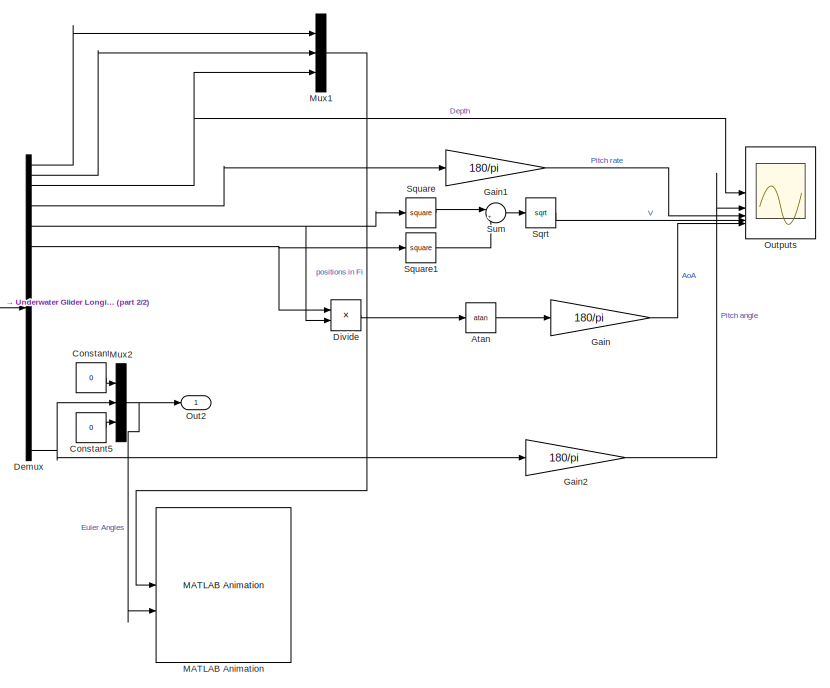
[diagram: root canvas - part 1/2, right side, full height]
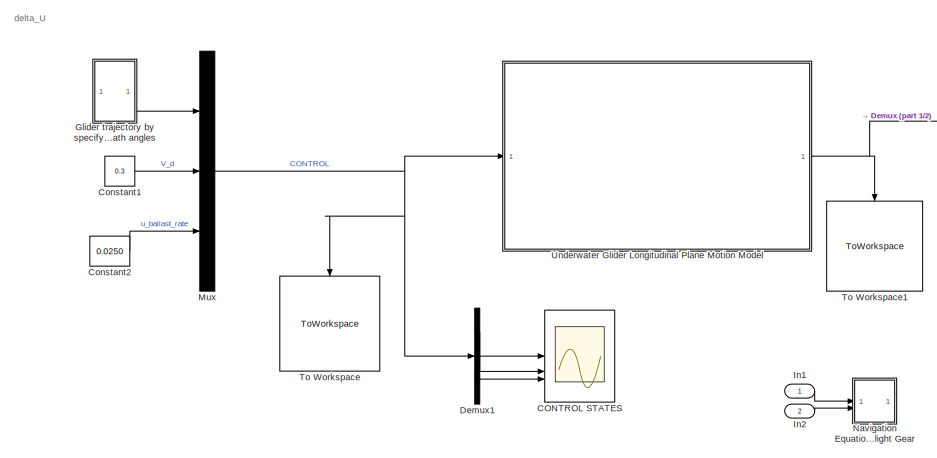
[diagram: root canvas - part 2/2, middle left region]
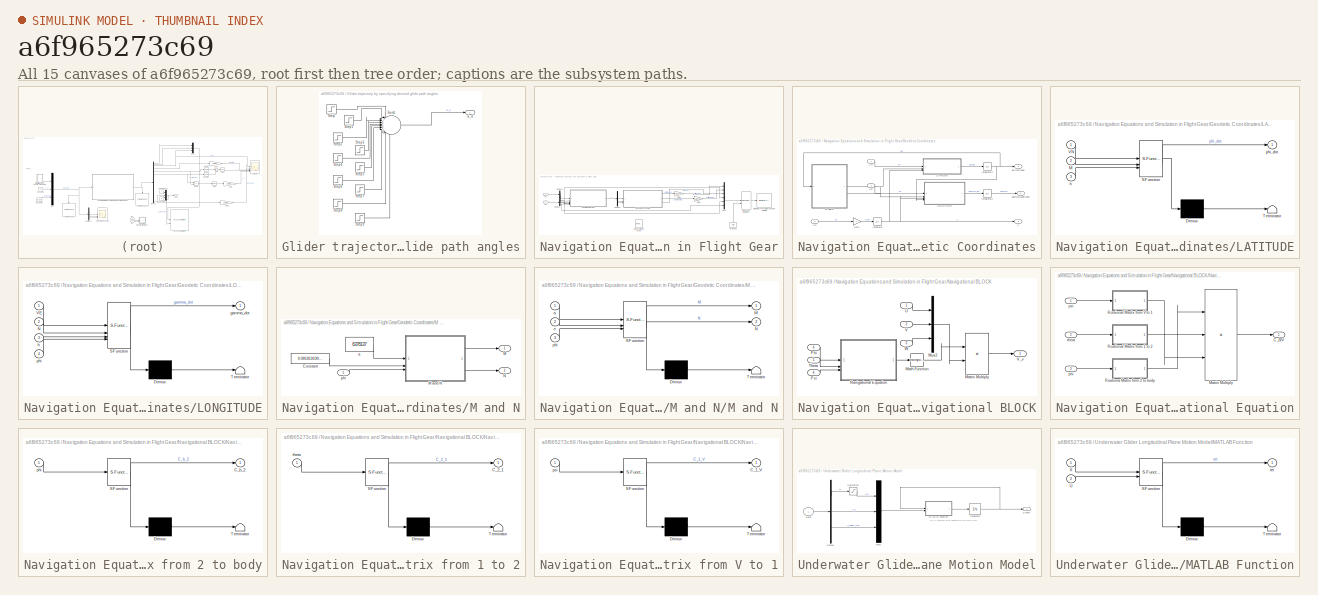
[diagram: thumbnail index - all 15 canvases of the model, root first then tree order]
MODEL slx_a6f965273c69
KIND model
CONFIG AbsTol = auto
CONFIG EnableMultiTasking = off
CONFIG FixedStep = 0.0000111111111111111111111111111
CONFIG MaxStep = auto
CONFIG MinStep = auto
CONFIG RelTol = 1e-3
CONFIG SampleTimeConstraint = Unconstrained
CONFIG SolverName = VariableStepAuto
CONFIG StartTime = 0.0
CONFIG StopTime = inf
BLOCK [Trigonometry] Atan
  Operator = atan
BLOCK [Scope] CONTROL STATES 
  Floating = off
  NumInputPorts = 3
  ScopeSpecificationString = Simulink.scopes.TimeScopeBlockCfg('CurrentConfiguration', extmgr.ConfigurationSet(extmgr.Configuration('Core','General UI',true),extmgr.Configuration('Core','Source UI',true),extmgr.Configuration('Sources','WiredSimulink',true),extmgr.Configuration('Visuals','Time Domain',true,'SerializedDisplays',{struct('MinYLimReal','-0.5','MaxYLimReal','0.5','YLabelReal','','MinYLimMag','0.00000','MaxYLimMag',...<+3050ch>
BLOCK [Constant] Constant
  Value = 0
BLOCK [Constant] Constant1
  Value = 0.3
BLOCK [Constant] Constant2
  Value = 0.0250
BLOCK [Constant] Constant5
  Value = 0
BLOCK [Demux] Demux
  Outputs = 29
BLOCK [Demux] Demux1
  Outputs = 3
BLOCK [Product] Divide
  Inputs = */
BLOCK [Gain] Gain
  Gain = 180/pi
BLOCK [Gain] Gain1
  Gain = 180/pi
BLOCK [Gain] Gain2
  Gain = 180/pi
BLOCK [SubSystem] Glider trajectory by specifying desired glide path angles
BLOCK [Step] Glider trajectory by specifying desired glide path angles/Step
  After = -25*(pi/180)
  SampleTime = 0
  Time = 0
BLOCK [Step] Glider trajectory by specifying desired glide path angles/Step1
  After = 25*(pi/180)
  Commented = on
  SampleTime = 0
  Time = 15+5
BLOCK [Step] Glider trajectory by specifying desired glide path angles/Step2
  After = 50*(pi/180)
  SampleTime = 0
  Time = 375
BLOCK [Step] Glider trajectory by specifying desired glide path angles/Step3
  After = -25*(pi/180)
  Commented = on
  SampleTime = 0
  Time = 50+5
BLOCK [Step] Glider trajectory by specifying desired glide path angles/Step4
  After = -50*(pi/180)
  SampleTime = 0
  Time = 750
BLOCK [Step] Glider trajectory by specifying desired glide path angles/Step5
  After = 25*(pi/180)
  Commented = on
  SampleTime = 0
  Time = 80+5
BLOCK [Step] Glider trajectory by specifying desired glide path angles/Step6
  After = 50*(pi/180)
  SampleTime = 0
  Time = 1125
BLOCK [Step] Glider trajectory by specifying desired glide path angles/Step7
  After = -25*(pi/180)
  Commented = on
  SampleTime = 0
  Time = 110+5
BLOCK [Step] Glider trajectory by specifying desired glide path angles/Step8
  After = -50*(pi/180)
  SampleTime = 0
  Time = 1500
BLOCK [Step] Glider trajectory by specifying desired glide path angles/Step9
  After = 25*(pi/180)
  Commented = on
  SampleTime = 0
  Time = 130+5
BLOCK [Sum] Glider trajectory by specifying desired glide path angles/Sum1
  Inputs = |++++++++++
BLOCK [Outport] Glider trajectory by specifying desired glide path angles/xi_d
BLOCK [Inport] In1
BLOCK [Inport] In2
  Port = 2
BLOCK [Reference] MATLAB Animation  REF=aerolibanim/MATLAB
Animation
  SourceBlock = aerolibanim/MATLAB\nAnimation
  SourceType = AeroMATLABAnimation
  Tag = Matlab Animation 6 DOF
BLOCK [Mux] Mux
  DisplayOption = bar
  Inputs = 3
BLOCK [Mux] Mux1
  DisplayOption = bar
  Inputs = 3
BLOCK [Mux] Mux2
  DisplayOption = bar
  Inputs = 3
BLOCK [SubSystem] Navigation Equations and Simulation in Flight Gear
  Commented = on
BLOCK [Demux] Navigation Equations and Simulation in Flight Gear/Demux2
  Outputs = 3
BLOCK [Demux] Navigation Equations and Simulation in Flight Gear/Demux3
  Outputs = 3
BLOCK [Demux] Navigation Equations and Simulation in Flight Gear/Demux4
  Outputs = 3
BLOCK [Reference] Navigation Equations and Simulation in Flight Gear/FlightGear Preconfigured 6DoF Animation  REF=aerolibfltsims/FlightGear
Preconfigured
6DoF Animation
  SourceBlock = aerolibfltsims/FlightGear\nPreconfigured\n6DoF Animation
  SourceType = FlightGearQuick6DoFAnimation
BLOCK [Gain] Navigation Equations and Simulation in Flight Gear/Gain1
  Gain = 180/pi
BLOCK [Gain] Navigation Equations and Simulation in Flight Gear/Gain2
  Gain = 180/pi
BLOCK [Reference] Navigation Equations and Simulation in Flight Gear/Generate Run Script  REF=aerolibfltsims/Generate
Run Script
  SourceBlock = aerolibfltsims/Generate\nRun Script
  SourceType = Generate FlightGear Run Script
BLOCK [SubSystem] Navigation Equations and Simulation in Flight Gear/Geodetic Coordinates
BLOCK [Gain] Navigation Equations and Simulation in Flight Gear/Geodetic Coordinates/Gain
  Gain = -1
BLOCK [Integrator] Navigation Equations and Simulation in Flight Gear/Geodetic Coordinates/Integrator
  InitialCondition = 150
BLOCK [Integrator] Navigation Equations and Simulation in Flight Gear/Geodetic Coordinates/Integrator1
  InitialCondition = 0.22181
BLOCK [Integrator] Navigation Equations and Simulation in Flight Gear/Geodetic Coordinates/Integrator2
  InitialCondition = 1.356068
BLOCK [SubSystem] Navigation Equations and Simulation in Flight Gear/Geodetic Coordinates/LATITUDE
  ErrorFcn = Stateflow.Translate.translate
  PermitHierarchicalResolution = ExplicitOnly
  SFBlockType = MATLAB Function
  TreatAsAtomicUnit = on
BLOCK [Demux] Navigation Equations and Simulation in Flight Gear/Geodetic Coordinates/LATITUDE/ Demux 
  Outputs = 1
BLOCK [S-Function] Navigation Equations and Simulation in Flight Gear/Geodetic Coordinates/LATITUDE/ SFunction 
  EnableBusSupport = on
  FunctionName = sf_sfun
  PortCounts = [3 2]
  SFcnIsStateOwnerBlock = off
  SFunctionDeploymentMode = off
  Tag = Stateflow S-Function 5
BLOCK [Terminator] Navigation Equations and Simulation in Flight Gear/Geodetic Coordinates/LATITUDE/ Terminator 
BLOCK [Inport] Navigation Equations and Simulation in Flight Gear/Geodetic Coordinates/LATITUDE/M
  Port = 2
BLOCK [Inport] Navigation Equations and Simulation in Flight Gear/Geodetic Coordinates/LATITUDE/VN
BLOCK [Inport] Navigation Equations and Simulation in Flight Gear/Geodetic Coordinates/LATITUDE/h
  Port = 3
BLOCK [Outport] Navigation Equations and Simulation in Flight Gear/Geodetic Coordinates/LATITUDE/phi_dot
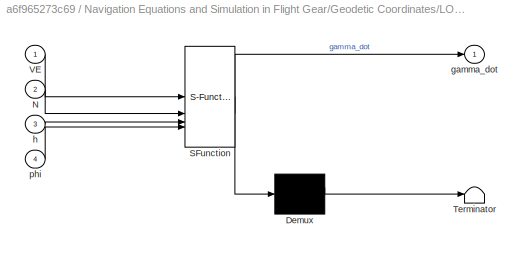
BLOCK [SubSystem] Navigation Equations and Simulation in Flight Gear/Geodetic Coordinates/LONGITUDE
  ErrorFcn = Stateflow.Translate.translate
  PermitHierarchicalResolution = ExplicitOnly
  SFBlockType = MATLAB Function
  TreatAsAtomicUnit = on
BLOCK [Demux] Navigation Equations and Simulation in Flight Gear/Geodetic Coordinates/LONGITUDE/ Demux 
  Outputs = 1
BLOCK [S-Function] Navigation Equations and Simulation in Flight Gear/Geodetic Coordinates/LONGITUDE/ SFunction 
  EnableBusSupport = on
  FunctionName = sf_sfun
  PortCounts = [4 2]
  SFcnIsStateOwnerBlock = off
  SFunctionDeploymentMode = off
  Tag = Stateflow S-Function 6
BLOCK [Terminator] Navigation Equations and Simulation in Flight Gear/Geodetic Coordinates/LONGITUDE/ Terminator 
BLOCK [Inport] Navigation Equations and Simulation in Flight Gear/Geodetic Coordinates/LONGITUDE/N
  Port = 2
BLOCK [Inport] Navigation Equations and Simulation in Flight Gear/Geodetic Coordinates/LONGITUDE/VE
BLOCK [Outport] Navigation Equations and Simulation in Flight Gear/Geodetic Coordinates/LONGITUDE/gamma_dot
BLOCK [Inport] Navigation Equations and Simulation in Flight Gear/Geodetic Coordinates/LONGITUDE/h
  Port = 3
BLOCK [Inport] Navigation Equations and Simulation in Flight Gear/Geodetic Coordinates/LONGITUDE/phi
  Port = 4
BLOCK [SubSystem] Navigation Equations and Simulation in Flight Gear/Geodetic Coordinates/M and N
BLOCK [Constant] Navigation Equations and Simulation in Flight Gear/Geodetic Coordinates/M and N/Constant
  Value = 0.081819190842622
BLOCK [Outport] Navigation Equations and Simulation in Flight Gear/Geodetic Coordinates/M and N/M
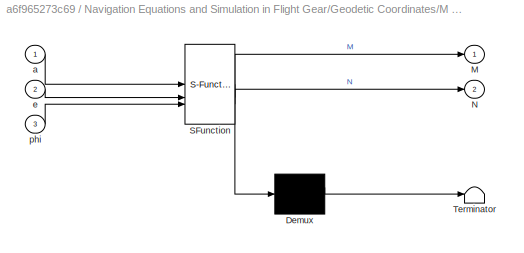
BLOCK [SubSystem] Navigation Equations and Simulation in Flight Gear/Geodetic Coordinates/M and N/M and N
  ErrorFcn = Stateflow.Translate.translate
  PermitHierarchicalResolution = ExplicitOnly
  SFBlockType = MATLAB Function
  TreatAsAtomicUnit = on
BLOCK [Demux] Navigation Equations and Simulation in Flight Gear/Geodetic Coordinates/M and N/M and N/ Demux 
  Outputs = 1
BLOCK [S-Function] Navigation Equations and Simulation in Flight Gear/Geodetic Coordinates/M and N/M and N/ SFunction 
  EnableBusSupport = on
  FunctionName = sf_sfun
  PortCounts = [3 3]
  SFcnIsStateOwnerBlock = off
  SFunctionDeploymentMode = off
  Tag = Stateflow S-Function 7
BLOCK [Terminator] Navigation Equations and Simulation in Flight Gear/Geodetic Coordinates/M and N/M and N/ Terminator 
BLOCK [Outport] Navigation Equations and Simulation in Flight Gear/Geodetic Coordinates/M and N/M and N/M
BLOCK [Outport] Navigation Equations and Simulation in Flight Gear/Geodetic Coordinates/M and N/M and N/N
  Port = 2
BLOCK [Inport] Navigation Equations and Simulation in Flight Gear/Geodetic Coordinates/M and N/M and N/a
BLOCK [Inport] Navigation Equations and Simulation in Flight Gear/Geodetic Coordinates/M and N/M and N/e
  Port = 2
BLOCK [Inport] Navigation Equations and Simulation in Flight Gear/Geodetic Coordinates/M and N/M and N/phi
  Port = 3
BLOCK [Outport] Navigation Equations and Simulation in Flight Gear/Geodetic Coordinates/M and N/N
  Port = 2
BLOCK [Constant] Navigation Equations and Simulation in Flight Gear/Geodetic Coordinates/M and N/a
  Value = 6378137
BLOCK [Inport] Navigation Equations and Simulation in Flight Gear/Geodetic Coordinates/M and N/phi
BLOCK [Inport] Navigation Equations and Simulation in Flight Gear/Geodetic Coordinates/VD
  Port = 3
BLOCK [Inport] Navigation Equations and Simulation in Flight Gear/Geodetic Coordinates/VE
  Port = 2
BLOCK [Inport] Navigation Equations and Simulation in Flight Gear/Geodetic Coordinates/VN
BLOCK [Outport] Navigation Equations and Simulation in Flight Gear/Geodetic Coordinates/gamma(Longitude)
  Port = 2
BLOCK [Outport] Navigation Equations and Simulation in Flight Gear/Geodetic Coordinates/h
  Port = 3
BLOCK [Outport] Navigation Equations and Simulation in Flight Gear/Geodetic Coordinates/phi(Latitude)
BLOCK [Ground] Navigation Equations and Simulation in Flight Gear/Ground1
  NameLocation = right
BLOCK [Inport] Navigation Equations and Simulation in Flight Gear/In1
BLOCK [Inport] Navigation Equations and Simulation in Flight Gear/In2
  Port = 2
BLOCK [Mux] Navigation Equations and Simulation in Flight Gear/Mux5
  DisplayOption = bar
  Inputs = 6
BLOCK [SubSystem] Navigation Equations and Simulation in Flight Gear/Navigational BLOCK
  NameLocation = top
BLOCK [Math] Navigation Equations and Simulation in Flight Gear/Navigational BLOCK/Math Function
  Operator = transpose
BLOCK [Product] Navigation Equations and Simulation in Flight Gear/Navigational BLOCK/Matrix Multiply
  Multiplication = Matrix(*)
BLOCK [Mux] Navigation Equations and Simulation in Flight Gear/Navigational BLOCK/Mux2
  DisplayOption = bar
  Inputs = 3
BLOCK [SubSystem] Navigation Equations and Simulation in Flight Gear/Navigational BLOCK/Navigational Equation
BLOCK [Outport] Navigation Equations and Simulation in Flight Gear/Navigational BLOCK/Navigational Equation/C_B//V
BLOCK [Product] Navigation Equations and Simulation in Flight Gear/Navigational BLOCK/Navigational Equation/Matrix Multiply
  Inputs = 3
  Multiplication = Matrix(*)
BLOCK [SubSystem] Navigation Equations and Simulation in Flight Gear/Navigational BLOCK/Navigational Equation/Roationa Matrix from 2 to body
  ErrorFcn = Stateflow.Translate.translate
  PermitHierarchicalResolution = ExplicitOnly
  SFBlockType = MATLAB Function
  TreatAsAtomicUnit = on
BLOCK [Demux] Navigation Equations and Simulation in Flight Gear/Navigational BLOCK/Navigational Equation/Roationa Matrix from 2 to body/ Demux 
  Outputs = 1
BLOCK [S-Function] Navigation Equations and Simulation in Flight Gear/Navigational BLOCK/Navigational Equation/Roationa Matrix from 2 to body/ SFunction 
  EnableBusSupport = on
  FunctionName = sf_sfun
  PortCounts = [1 2]
  SFcnIsStateOwnerBlock = off
  SFunctionDeploymentMode = off
  Tag = Stateflow S-Function 3
BLOCK [Terminator] Navigation Equations and Simulation in Flight Gear/Navigational BLOCK/Navigational Equation/Roationa Matrix from 2 to body/ Terminator 
BLOCK [Outport] Navigation Equations and Simulation in Flight Gear/Navigational BLOCK/Navigational Equation/Roationa Matrix from 2 to body/C_b_2
BLOCK [Inport] Navigation Equations and Simulation in Flight Gear/Navigational BLOCK/Navigational Equation/Roationa Matrix from 2 to body/phi
BLOCK [SubSystem] Navigation Equations and Simulation in Flight Gear/Navigational BLOCK/Navigational Equation/Roational Matrix from 1 to 2
  ErrorFcn = Stateflow.Translate.translate
  PermitHierarchicalResolution = ExplicitOnly
  SFBlockType = MATLAB Function
  TreatAsAtomicUnit = on
BLOCK [Demux] Navigation Equations and Simulation in Flight Gear/Navigational BLOCK/Navigational Equation/Roational Matrix from 1 to 2/ Demux 
  Outputs = 1
BLOCK [S-Function] Navigation Equations and Simulation in Flight Gear/Navigational BLOCK/Navigational Equation/Roational Matrix from 1 to 2/ SFunction 
  EnableBusSupport = on
  FunctionName = sf_sfun
  PortCounts = [1 2]
  SFcnIsStateOwnerBlock = off
  SFunctionDeploymentMode = off
  Tag = Stateflow S-Function 1
BLOCK [Terminator] Navigation Equations and Simulation in Flight Gear/Navigational BLOCK/Navigational Equation/Roational Matrix from 1 to 2/ Terminator 
BLOCK [Outport] Navigation Equations and Simulation in Flight Gear/Navigational BLOCK/Navigational Equation/Roational Matrix from 1 to 2/C_2_1
BLOCK [Inport] Navigation Equations and Simulation in Flight Gear/Navigational BLOCK/Navigational Equation/Roational Matrix from 1 to 2/theta
BLOCK [SubSystem] Navigation Equations and Simulation in Flight Gear/Navigational BLOCK/Navigational Equation/Rotaional Matrix from V to 1
  ErrorFcn = Stateflow.Translate.translate
  PermitHierarchicalResolution = ExplicitOnly
  SFBlockType = MATLAB Function
  TreatAsAtomicUnit = on
BLOCK [Demux] Navigation Equations and Simulation in Flight Gear/Navigational BLOCK/Navigational Equation/Rotaional Matrix from V to 1/ Demux 
  Outputs = 1
BLOCK [S-Function] Navigation Equations and Simulation in Flight Gear/Navigational BLOCK/Navigational Equation/Rotaional Matrix from V to 1/ SFunction 
  EnableBusSupport = on
  FunctionName = sf_sfun
  PortCounts = [1 2]
  SFcnIsStateOwnerBlock = off
  SFunctionDeploymentMode = off
  Tag = Stateflow S-Function 4
BLOCK [Terminator] Navigation Equations and Simulation in Flight Gear/Navigational BLOCK/Navigational Equation/Rotaional Matrix from V to 1/ Terminator 
BLOCK [Outport] Navigation Equations and Simulation in Flight Gear/Navigational BLOCK/Navigational Equation/Rotaional Matrix from V to 1/C_1_V
BLOCK [Inport] Navigation Equations and Simulation in Flight Gear/Navigational BLOCK/Navigational Equation/Rotaional Matrix from V to 1/psi
BLOCK [Inport] Navigation Equations and Simulation in Flight Gear/Navigational BLOCK/Navigational Equation/phi
  Port = 3
BLOCK [Inport] Navigation Equations and Simulation in Flight Gear/Navigational BLOCK/Navigational Equation/psi
BLOCK [Inport] Navigation Equations and Simulation in Flight Gear/Navigational BLOCK/Navigational Equation/theat
  Port = 2
BLOCK [Inport] Navigation Equations and Simulation in Flight Gear/Navigational BLOCK/Phi
  Port = 4
BLOCK [Inport] Navigation Equations and Simulation in Flight Gear/Navigational BLOCK/Psi
  Port = 6
BLOCK [Inport] Navigation Equations and Simulation in Flight Gear/Navigational BLOCK/Theta
  Port = 5
BLOCK [Inport] Navigation Equations and Simulation in Flight Gear/Navigational BLOCK/U
BLOCK [Inport] Navigation Equations and Simulation in Flight Gear/Navigational BLOCK/V
  Port = 2
BLOCK [Outport] Navigation Equations and Simulation in Flight Gear/Navigational BLOCK/V_v
BLOCK [Inport] Navigation Equations and Simulation in Flight Gear/Navigational BLOCK/W
  Port = 3
BLOCK [ManualSwitch] Navigation Equations and Simulation in Flight Gear/OFF or NO FlightGear
  CurrentSetting = 0
BLOCK [Outport] Out2
BLOCK [Scope] Outputs
  Floating = off
  NumInputPorts = 5
  ScopeSpecificationString = Simulink.scopes.TimeScopeBlockCfg('CurrentConfiguration', extmgr.ConfigurationSet(extmgr.Configuration('Core','General UI',true),extmgr.Configuration('Core','Source UI',true),extmgr.Configuration('Sources','WiredSimulink',true,'DataLoggingVariableName','ScopeData2'),extmgr.Configuration('Visuals','Time Domain',true,'SerializedDisplays',{struct('MinYLimReal','-10','MaxYLimReal','40','YLabelReal',''...<+4666ch>
BLOCK [Sqrt] Sqrt
BLOCK [Math] Square
  Operator = square
BLOCK [Math] Square1
  Operator = square
BLOCK [Sum] Sum
  Inputs = |++
BLOCK [ToWorkspace] To Workspace
  FixptAsFi = on
  MaxDataPoints = inf
  NameLocation = left
  SampleTime = -1
  SaveFormat = Timeseries
  VariableName = simU
BLOCK [ToWorkspace] To Workspace1
  FixptAsFi = on
  MaxDataPoints = inf
  NameLocation = left
  SampleTime = -1
  SaveFormat = Timeseries
  VariableName = simX
BLOCK [SubSystem] Underwater Glider Longitudinal Plane Motion Model
BLOCK [Demux] Underwater Glider Longitudinal Plane Motion Model/Demux
  Outputs = 3
BLOCK [Integrator] Underwater Glider Longitudinal Plane Motion Model/Integrator
  InitialCondition = [0; 0; 0; 0; 0; 0; v1_d; 0; v3_d; rp1_d; 0; rp3; rs1_d; 0; rs3; rb1; 0; rb3; 0; 0; 0; 0; 0; 0; mb*v1_d; 0; mb*v3_d; mb_d; theta0]
BLOCK [SubSystem] Underwater Glider Longitudinal Plane Motion Model/MATLAB Function
  ErrorFcn = Stateflow.Translate.translate
  PermitHierarchicalResolution = ExplicitOnly
  SFBlockType = MATLAB Function
  TreatAsAtomicUnit = on
BLOCK [Demux] Underwater Glider Longitudinal Plane Motion Model/MATLAB Function/ Demux 
  Outputs = 1
BLOCK [S-Function] Underwater Glider Longitudinal Plane Motion Model/MATLAB Function/ SFunction 
  EnableBusSupport = on
  FunctionName = sf_sfun
  PortCounts = [2 2]
  SFcnIsStateOwnerBlock = off
  SFunctionDeploymentMode = off
  Tag = Stateflow S-Function 2
BLOCK [Terminator] Underwater Glider Longitudinal Plane Motion Model/MATLAB Function/ Terminator 
BLOCK [Inport] Underwater Glider Longitudinal Plane Motion Model/MATLAB Function/U
  Port = 2
BLOCK [Inport] Underwater Glider Longitudinal Plane Motion Model/MATLAB Function/X
BLOCK [Outport] Underwater Glider Longitudinal Plane Motion Model/MATLAB Function/ret
BLOCK [Mux] Underwater Glider Longitudinal Plane Motion Model/Mux1
  DisplayOption = bar
  Inputs = 3
BLOCK [Saturate] Underwater Glider Longitudinal Plane Motion Model/Saturation
  LowerLimit = -6.314842
  UpperLimit = 6.314842
BLOCK [Outport] Underwater Glider Longitudinal Plane Motion Model/States
BLOCK [Inport] Underwater Glider Longitudinal Plane Motion Model/u(5x1)
ANNOTATION (root): delta_U
ANNOTATION Underwater Glider Longitudinal Plane Motion Model: [U;V;W;p;q;r;Phi;theta;Psi;PN;PE;PD]
LINE Atan:1 -> Gain:1
LINE Constant1:1 -> Mux:2
LINE Constant2:1 -> Mux:3
LINE Constant5:1 -> Mux2:3
LINE Constant:1 -> Mux2:1
LINE Demux1:1 -> CONTROL STATES :1
LINE Demux1:2 -> CONTROL STATES :2
LINE Demux1:3 -> CONTROL STATES :3
LINE Demux:1 -> Mux1:1
LINE Demux:2 -> Mux1:2
NET Demux:29 -> Gain2:1, Mux2:2
NET Demux:3 -> Mux1:3, Outputs:1
LINE Demux:5 -> Gain1:1
NET Demux:7 -> Divide:2, Square:1
NET Demux:9 -> Divide:1, Square1:1
LINE Divide:1 -> Atan:1
LINE Gain1:1 -> Outputs:3
LINE Gain2:1 -> Outputs:2
LINE Gain:1 -> Outputs:5
LINE Glider trajectory by specifying desired glide path angles/Step1:1 -> Glider trajectory by specifying desired glide path angles/Sum1:2
LINE Glider trajectory by specifying desired glide path angles/Step2:1 -> Glider trajectory by specifying desired glide path angles/Sum1:3
LINE Glider trajectory by specifying desired glide path angles/Step3:1 -> Glider trajectory by specifying desired glide path angles/Sum1:4
LINE Glider trajectory by specifying desired glide path angles/Step4:1 -> Glider trajectory by specifying desired glide path angles/Sum1:5
LINE Glider trajectory by specifying desired glide path angles/Step5:1 -> Glider trajectory by specifying desired glide path angles/Sum1:6
LINE Glider trajectory by specifying desired glide path angles/Step6:1 -> Glider trajectory by specifying desired glide path angles/Sum1:7
LINE Glider trajectory by specifying desired glide path angles/Step7:1 -> Glider trajectory by specifying desired glide path angles/Sum1:8
LINE Glider trajectory by specifying desired glide path angles/Step8:1 -> Glider trajectory by specifying desired glide path angles/Sum1:9
LINE Glider trajectory by specifying desired glide path angles/Step9:1 -> Glider trajectory by specifying desired glide path angles/Sum1:10
LINE Glider trajectory by specifying desired glide path angles/Step:1 -> Glider trajectory by specifying desired glide path angles/Sum1:1
LINE Glider trajectory by specifying desired glide path angles/Sum1:1 -> Glider trajectory by specifying desired glide path angles/xi_d:1
LINE Glider trajectory by specifying desired glide path angles:1 -> Mux:1
LINE In1:1 -> Navigation Equations and Simulation in Flight Gear:1
LINE In2:1 -> Navigation Equations and Simulation in Flight Gear:2
LINE Mux1:1 -> MATLAB Animation:1
NET Mux2:1 -> MATLAB Animation:2, Out2:1
NET Mux:1 -> Demux1:1, To Workspace:1, Underwater Glider Longitudinal Plane Motion Model:1
LINE Navigation Equations and Simulation in Flight Gear/Demux2:1 -> Navigation Equations and Simulation in Flight Gear/Navigational BLOCK:1
LINE Navigation Equations and Simulation in Flight Gear/Demux2:2 -> Navigation Equations and Simulation in Flight Gear/Navigational BLOCK:2
LINE Navigation Equations and Simulation in Flight Gear/Demux2:3 -> Navigation Equations and Simulation in Flight Gear/Navigational BLOCK:3
NET Navigation Equations and Simulation in Flight Gear/Demux3:1 -> Navigation Equations and Simulation in Flight Gear/Mux5:4, Navigation Equations and Simulation in Flight Gear/Navigational BLOCK:4
NET Navigation Equations and Simulation in Flight Gear/Demux3:2 -> Navigation Equations and Simulation in Flight Gear/Mux5:5, Navigation Equations and Simulation in Flight Gear/Navigational BLOCK:5
NET Navigation Equations and Simulation in Flight Gear/Demux3:3 -> Navigation Equations and Simulation in Flight Gear/Mux5:6, Navigation Equations and Simulation in Flight Gear/Navigational BLOCK:6
LINE Navigation Equations and Simulation in Flight Gear/Demux4:1 -> Navigation Equations and Simulation in Flight Gear/Geodetic Coordinates:1
LINE Navigation Equations and Simulation in Flight Gear/Demux4:2 -> Navigation Equations and Simulation in Flight Gear/Geodetic Coordinates:2
LINE Navigation Equations and Simulation in Flight Gear/Demux4:3 -> Navigation Equations and Simulation in Flight Gear/Geodetic Coordinates:3
LINE Navigation Equations and Simulation in Flight Gear/Gain1:1 -> Navigation Equations and Simulation in Flight Gear/Mux5:1
LINE Navigation Equations and Simulation in Flight Gear/Gain2:1 -> Navigation Equations and Simulation in Flight Gear/Mux5:2
LINE Navigation Equations and Simulation in Flight Gear/Geodetic Coordinates/Gain:1 -> Navigation Equations and Simulation in Flight Gear/Geodetic Coordinates/Integrator:1
NET Navigation Equations and Simulation in Flight Gear/Geodetic Coordinates/Integrator1:1 -> Navigation Equations and Simulation in Flight Gear/Geodetic Coordinates/LONGITUDE:4, Navigation Equations and Simulation in Flight Gear/Geodetic Coordinates/M and N:1, Navigation Equations and Simulation in Flight Gear/Geodetic Coordinates/phi(Latitude):1
LINE Navigation Equations and Simulation in Flight Gear/Geodetic Coordinates/Integrator2:1 -> Navigation Equations and Simulation in Flight Gear/Geodetic Coordinates/gamma(Longitude):1
NET Navigation Equations and Simulation in Flight Gear/Geodetic Coordinates/Integrator:1 -> Navigation Equations and Simulation in Flight Gear/Geodetic Coordinates/LATITUDE:3, Navigation Equations and Simulation in Flight Gear/Geodetic Coordinates/LONGITUDE:3, Navigation Equations and Simulation in Flight Gear/Geodetic Coordinates/h:1
LINE Navigation Equations and Simulation in Flight Gear/Geodetic Coordinates/LATITUDE:1 -> Navigation Equations and Simulation in Flight Gear/Geodetic Coordinates/Integrator1:1
LINE Navigation Equations and Simulation in Flight Gear/Geodetic Coordinates/LONGITUDE:1 -> Navigation Equations and Simulation in Flight Gear/Geodetic Coordinates/Integrator2:1
LINE Navigation Equations and Simulation in Flight Gear/Geodetic Coordinates/M and N/Constant:1 -> Navigation Equations and Simulation in Flight Gear/Geodetic Coordinates/M and N/M and N:2
LINE Navigation Equations and Simulation in Flight Gear/Geodetic Coordinates/M and N/M and N:1 -> Navigation Equations and Simulation in Flight Gear/Geodetic Coordinates/M and N/M:1
LINE Navigation Equations and Simulation in Flight Gear/Geodetic Coordinates/M and N/M and N:2 -> Navigation Equations and Simulation in Flight Gear/Geodetic Coordinates/M and N/N:1
LINE Navigation Equations and Simulation in Flight Gear/Geodetic Coordinates/M and N/a:1 -> Navigation Equations and Simulation in Flight Gear/Geodetic Coordinates/M and N/M and N:1
LINE Navigation Equations and Simulation in Flight Gear/Geodetic Coordinates/M and N/phi:1 -> Navigation Equations and Simulation in Flight Gear/Geodetic Coordinates/M and N/M and N:3
LINE Navigation Equations and Simulation in Flight Gear/Geodetic Coordinates/M and N:1 -> Navigation Equations and Simulation in Flight Gear/Geodetic Coordinates/LATITUDE:2
LINE Navigation Equations and Simulation in Flight Gear/Geodetic Coordinates/M and N:2 -> Navigation Equations and Simulation in Flight Gear/Geodetic Coordinates/LONGITUDE:2
LINE Navigation Equations and Simulation in Flight Gear/Geodetic Coordinates/VD:1 -> Navigation Equations and Simulation in Flight Gear/Geodetic Coordinates/Gain:1
LINE Navigation Equations and Simulation in Flight Gear/Geodetic Coordinates/VE:1 -> Navigation Equations and Simulation in Flight Gear/Geodetic Coordinates/LONGITUDE:1
LINE Navigation Equations and Simulation in Flight Gear/Geodetic Coordinates/VN:1 -> Navigation Equations and Simulation in Flight Gear/Geodetic Coordinates/LATITUDE:1
LINE Navigation Equations and Simulation in Flight Gear/Geodetic Coordinates:1 -> Navigation Equations and Simulation in Flight Gear/Gain1:1
LINE Navigation Equations and Simulation in Flight Gear/Geodetic Coordinates:2 -> Navigation Equations and Simulation in Flight Gear/Gain2:1
LINE Navigation Equations and Simulation in Flight Gear/Geodetic Coordinates:3 -> Navigation Equations and Simulation in Flight Gear/Mux5:3
LINE Navigation Equations and Simulation in Flight Gear/Ground1:1 -> Navigation Equations and Simulation in Flight Gear/OFF or NO FlightGear:2
LINE Navigation Equations and Simulation in Flight Gear/In1:1 -> Navigation Equations and Simulation in Flight Gear/Demux2:1
LINE Navigation Equations and Simulation in Flight Gear/In2:1 -> Navigation Equations and Simulation in Flight Gear/Demux3:1
LINE Navigation Equations and Simulation in Flight Gear/Mux5:1 -> Navigation Equations and Simulation in Flight Gear/OFF or NO FlightGear:1
LINE Navigation Equations and Simulation in Flight Gear/Navigational BLOCK/Math Function:1 -> Navigation Equations and Simulation in Flight Gear/Navigational BLOCK/Matrix Multiply:1
LINE Navigation Equations and Simulation in Flight Gear/Navigational BLOCK/Matrix Multiply:1 -> Navigation Equations and Simulation in Flight Gear/Navigational BLOCK/V_v:1
LINE Navigation Equations and Simulation in Flight Gear/Navigational BLOCK/Mux2:1 -> Navigation Equations and Simulation in Flight Gear/Navigational BLOCK/Matrix Multiply:2
LINE Navigation Equations and Simulation in Flight Gear/Navigational BLOCK/Navigational Equation/Matrix Multiply:1 -> Navigation Equations and Simulation in Flight Gear/Navigational BLOCK/Navigational Equation/C_B//V:1
LINE Navigation Equations and Simulation in Flight Gear/Navigational BLOCK/Navigational Equation/Roationa Matrix from 2 to body:1 -> Navigation Equations and Simulation in Flight Gear/Navigational BLOCK/Navigational Equation/Matrix Multiply:1
LINE Navigation Equations and Simulation in Flight Gear/Navigational BLOCK/Navigational Equation/Roational Matrix from 1 to 2:1 -> Navigation Equations and Simulation in Flight Gear/Navigational BLOCK/Navigational Equation/Matrix Multiply:2
LINE Navigation Equations and Simulation in Flight Gear/Navigational BLOCK/Navigational Equation/Rotaional Matrix from V to 1:1 -> Navigation Equations and Simulation in Flight Gear/Navigational BLOCK/Navigational Equation/Matrix Multiply:3
LINE Navigation Equations and Simulation in Flight Gear/Navigational BLOCK/Navigational Equation/phi:1 -> Navigation Equations and Simulation in Flight Gear/Navigational BLOCK/Navigational Equation/Roationa Matrix from 2 to body:1
LINE Navigation Equations and Simulation in Flight Gear/Navigational BLOCK/Navigational Equation/psi:1 -> Navigation Equations and Simulation in Flight Gear/Navigational BLOCK/Navigational Equation/Rotaional Matrix from V to 1:1
LINE Navigation Equations and Simulation in Flight Gear/Navigational BLOCK/Navigational Equation/theat:1 -> Navigation Equations and Simulation in Flight Gear/Navigational BLOCK/Navigational Equation/Roational Matrix from 1 to 2:1
LINE Navigation Equations and Simulation in Flight Gear/Navigational BLOCK/Navigational Equation:1 -> Navigation Equations and Simulation in Flight Gear/Navigational BLOCK/Math Function:1
LINE Navigation Equations and Simulation in Flight Gear/Navigational BLOCK/Phi:1 -> Navigation Equations and Simulation in Flight Gear/Navigational BLOCK/Navigational Equation:1
LINE Navigation Equations and Simulation in Flight Gear/Navigational BLOCK/Psi:1 -> Navigation Equations and Simulation in Flight Gear/Navigational BLOCK/Navigational Equation:3
LINE Navigation Equations and Simulation in Flight Gear/Navigational BLOCK/Theta:1 -> Navigation Equations and Simulation in Flight Gear/Navigational BLOCK/Navigational Equation:2
LINE Navigation Equations and Simulation in Flight Gear/Navigational BLOCK/U:1 -> Navigation Equations and Simulation in Flight Gear/Navigational BLOCK/Mux2:1
LINE Navigation Equations and Simulation in Flight Gear/Navigational BLOCK/V:1 -> Navigation Equations and Simulation in Flight Gear/Navigational BLOCK/Mux2:2
LINE Navigation Equations and Simulation in Flight Gear/Navigational BLOCK/W:1 -> Navigation Equations and Simulation in Flight Gear/Navigational BLOCK/Mux2:3
LINE Navigation Equations and Simulation in Flight Gear/Navigational BLOCK:1 -> Navigation Equations and Simulation in Flight Gear/Demux4:1
LINE Navigation Equations and Simulation in Flight Gear/OFF or NO FlightGear:1 -> Navigation Equations and Simulation in Flight Gear/FlightGear Preconfigured 6DoF Animation:1
LINE Sqrt:1 -> Outputs:4
LINE Square1:1 -> Sum:2
LINE Square:1 -> Sum:1
LINE Sum:1 -> Sqrt:1
LINE Underwater Glider Longitudinal Plane Motion Model/Demux:1 -> Underwater Glider Longitudinal Plane Motion Model/Saturation:1
LINE Underwater Glider Longitudinal Plane Motion Model/Demux:2 -> Underwater Glider Longitudinal Plane Motion Model/Mux1:2
LINE Underwater Glider Longitudinal Plane Motion Model/Demux:3 -> Underwater Glider Longitudinal Plane Motion Model/Mux1:3
NET Underwater Glider Longitudinal Plane Motion Model/Integrator:1 -> Underwater Glider Longitudinal Plane Motion Model/MATLAB Function:1, Underwater Glider Longitudinal Plane Motion Model/States:1
LINE Underwater Glider Longitudinal Plane Motion Model/MATLAB Function:1 -> Underwater Glider Longitudinal Plane Motion Model/Integrator:1
LINE Underwater Glider Longitudinal Plane Motion Model/Mux1:1 -> Underwater Glider Longitudinal Plane Motion Model/MATLAB Function:2
LINE Underwater Glider Longitudinal Plane Motion Model/Saturation:1 -> Underwater Glider Longitudinal Plane Motion Model/Mux1:1
LINE Underwater Glider Longitudinal Plane Motion Model/u(5x1):1 -> Underwater Glider Longitudinal Plane Motion Model/Demux:1
NET Underwater Glider Longitudinal Plane Motion Model:1 -> Demux:1, To Workspace1:1
note: NET lines group one-source signal fan-out (src -> all destinations, sorted); 1:1 wires keep LINE
CHART Navigation Equations and Simulation in Flight Gear/Navigational BLOCK/Navigational Equation/Roational Matrix from 1 to 2 states=1 transitions=1
  STATE_LABEL 'eML_blk_kernel()'
  STATE_LABEL 'SCRIPT:\nfunction C_2_1 = fcn(theta)\n\n% Roational Matrix From the 1 frame to 2 frame\n\nC_2_1=[cos(theta) 0 -sin(theta); 0 1 0; sin(theta) 0 cos(theta)];\n\nend\n'
CHART Underwater Glider Longitudinal Plane Motion Model/MATLAB Function states=1 transitions=1
  STATE_LABEL 'eML_blk_kernel()'
  STATE_LABEL 'SCRIPT:\nfunction ret=Model3d(X, U)\n\n%% Define terms\n\nb       = X(1:3);                 % Position in earth frame\nOmega   = X(4:6);                 % Angular rate\nv       = X(7:9);                 % Velocity in body frame\nrp      = X(10:12);               % Position of primary moving mass\nrs      = X(13:15);               % Position of secondary moving mass\nrb      = X(16:18);               % Posit...<+3608ch>'
CHART Navigation Equations and Simulation in Flight Gear/Navigational BLOCK/Navigational Equation/Roationa Matrix from 2 to body states=1 transitions=1
  STATE_LABEL 'eML_blk_kernel()'
  STATE_LABEL 'SCRIPT:\nfunction C_b_2 = fcn(phi)\n\n% Roational Matrix from the 2 frame to body frame\nC_b_2=[1 0 0; 0 cos(phi) sin(phi); 0 -sin(phi) cos(phi)];\nend\n\n'
CHART Navigation Equations and Simulation in Flight Gear/Navigational BLOCK/Navigational Equation/Rotaional Matrix from V to 1 states=1 transitions=1
  STATE_LABEL 'eML_blk_kernel()'
  STATE_LABEL 'SCRIPT:\nfunction C_1_V = fcn(psi)\n\n% Calculating the Rotaional Matrix  from the NED to 1 frame\n\nC_1_V=[cos(psi) sin(psi) 0; -sin(psi) cos(psi) 0; 0 0 1];\n\nend'
CHART Navigation Equations and Simulation in Flight Gear/Geodetic Coordinates/LATITUDE states=1 transitions=1
  STATE_LABEL 'eML_blk_kernel()'
  STATE_LABEL 'SCRIPT:\nfunction phi_dot =Latitude_Rate(VN,M,h)\n% Calculating the Rate of change of Latitude\n\nphi_dot=VN/(M+h);\nend'
CHART Navigation Equations and Simulation in Flight Gear/Geodetic Coordinates/LONGITUDE states=1 transitions=1
  STATE_LABEL 'eML_blk_kernel()'
  STATE_LABEL 'SCRIPT:\nfunction gamma_dot =Longitude_Rate(VE,N,h,phi)\n\n% Calculating the Rate of change of the Longitude\n\ngamma_dot=VE/((N+h)*cos(phi));\nend'
CHART Navigation Equations and Simulation in Flight Gear/Geodetic Coordinates/M and N/M and N states=1 transitions=1
  STATE_LABEL 'eML_blk_kernel()'
  STATE_LABEL 'SCRIPT:\nfunction[M,N]=M_N(a,e,phi)\n\nM=(a*(1-e*2)/(1-(e^2)*sin(phi))^3/2);  % Meridian Radius of Curvature\n\nN=a/(1-(e^2)*(sin(phi)^2))^3/2;        % Prime verical radius of curvature\n\nend'
CHART  states=0 transitions=0
CHART  states=0 transitions=0
CHART  states=0 transitions=0
CHART  states=0 transitions=0
CHART  states=0 transitions=0
CHART  states=0 transitions=0
CHART  states=0 transitions=0
